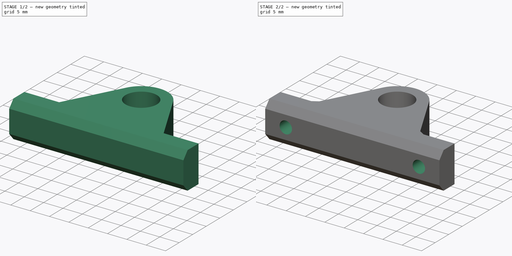
[diagram: build sequence overview — one tinted view per stage of 2, left to right]
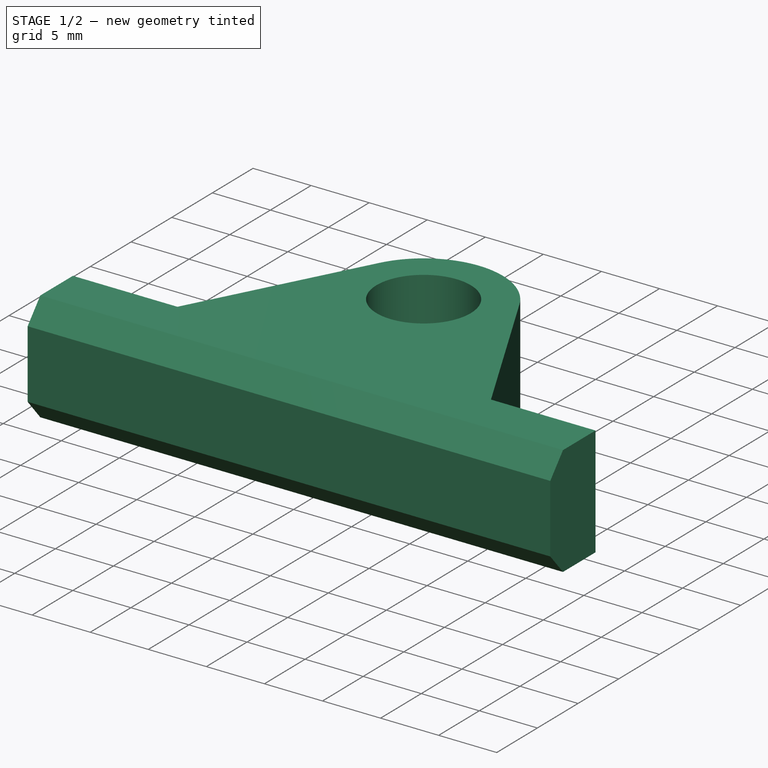
[diagram: stage 1 of 2 — iso view after this stage's code; geometry added in this stage tinted green]
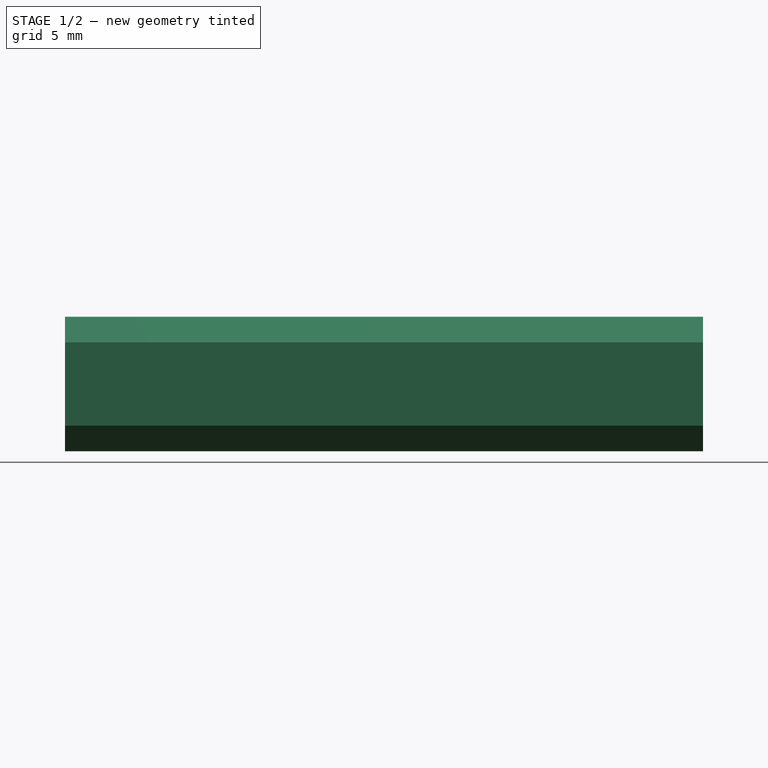
[diagram: stage 1 of 2 — front view after this stage's code; geometry added in this stage tinted green]
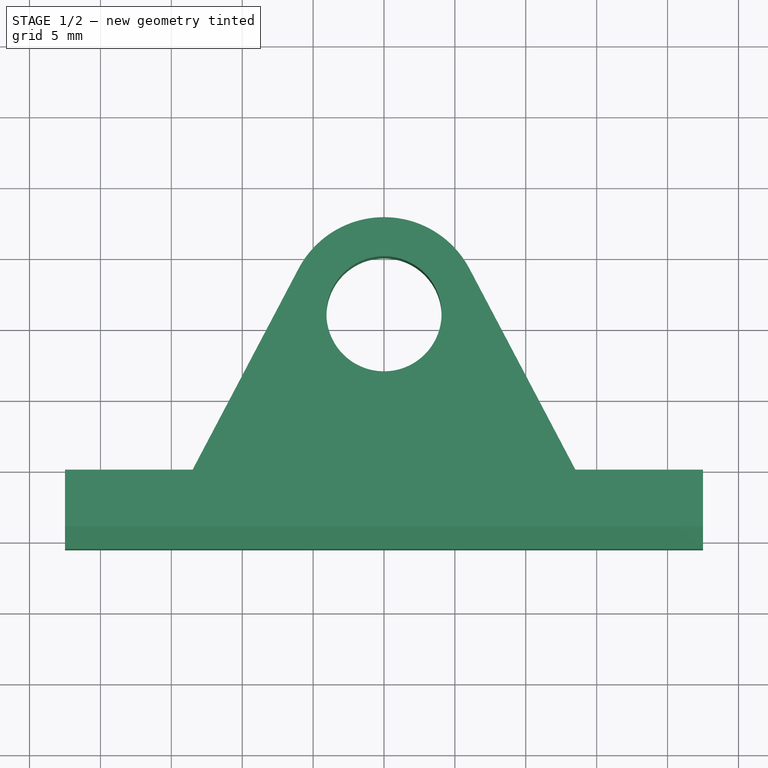
[diagram: stage 1 of 2 — top view after this stage's code; geometry added in this stage tinted green]
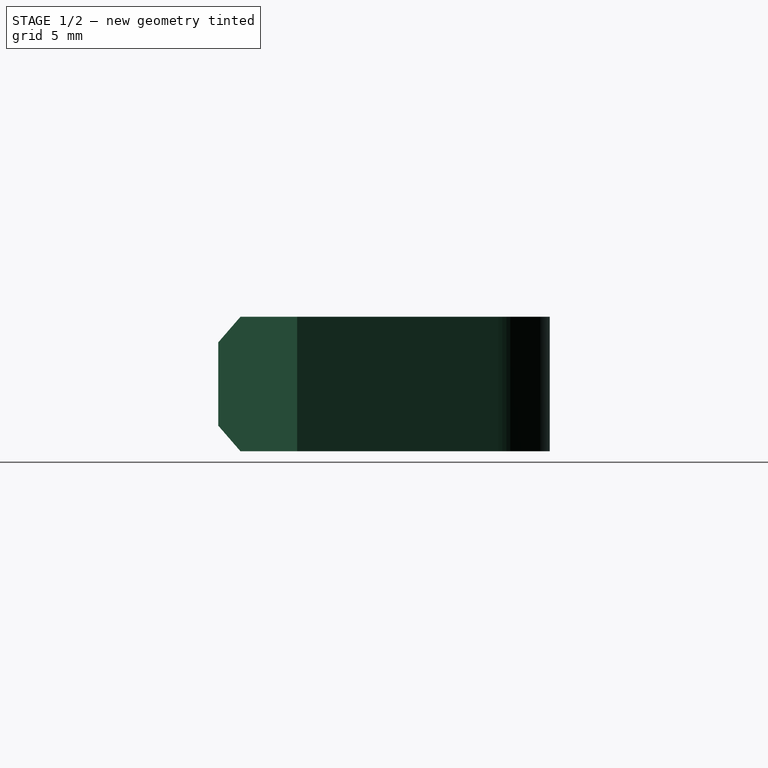
[diagram: stage 1 of 2 — right view after this stage's code; geometry added in this stage tinted green]
FCSTD DOCUMENT  (FreeCAD 0.19R24366 (Git))
Label: v-slot-2020-suporte-fuso-M8
License: All rights reserved
LicenseURL: http://en.wikipedia.org/wiki/All_rights_reserved
objects: Sketcher::SketchObject×3, PartDesign::Pad×2, PartDesign::Pocket×1, PartDesign::Chamfer×1, PartDesign::Body×1
note: 12 computed .brp shape members not serialized (recipe doc carries the construction recipe); baked Part::Feature solids carry a one-line shape summary decoded from their .brp

FEATURE [Sketcher::SketchObject] Sketch
  FullyConstrained = true
  MapMode = 5
  Support = -> [XY_Plane]
  sketch-geometry (10):
    g0: Circle CenterX=0 CenterY=11 CenterZ=0 NormalX=0 NormalY=0 NormalZ=1 AngleXU=0 Radius=4.06
    g1: ArcOfCircle CenterX=0 CenterY=11 CenterZ=0 NormalX=0 NormalY=0 NormalZ=1 AngleXU=0 Radius=6.81385 StartAngle=0.485061 EndAngle=2.65653
    g2: GeomPoint X=-2.52785 Y=14.177 Z=0
    g3: LineSegment StartX=-6.02785 StartY=14.177 StartZ=0 EndX=-13.5 EndY=0 EndZ=0
    g4: LineSegment StartX=6.02785 StartY=14.177 StartZ=0 EndX=13.5 EndY=0 EndZ=0
    g5: LineSegment StartX=-13.5 StartY=0 StartZ=0 EndX=-22.5 EndY=0 EndZ=0
    g6: LineSegment StartX=-22.5 StartY=0 StartZ=0 EndX=-22.5 EndY=-4 EndZ=0
    g7: LineSegment StartX=-22.5 StartY=-4 StartZ=0 EndX=22.5 EndY=-4 EndZ=0
    g8: LineSegment StartX=22.5 StartY=-4 StartZ=0 EndX=22.5 EndY=0 EndZ=0
    g9: LineSegment StartX=22.5 StartY=0 StartZ=0 EndX=13.5 EndY=0 EndZ=0
  constraints (27):
    c: PointOnObject(g0,g-2)
    c: Coincident(g1,g0)
    c: Radius(g0) = 4.06
    c: PointOnObject(g2,g0)
    c: Horizontal(g1,g2)
    c: DistanceX(g1,g2) = 3.5
    c: PointOnObject(g3,g-1)
    c: PointOnObject(g4,g-1)
    c: Equal(g3,g4)
    c: Tangent(g3,g1) = -1.5708
    c: Tangent(g4,g1) = 1.5708
    c: Coincident(g5,g3)
    c: PointOnObject(g5,g-1)
    c: Coincident(g5,g6)
    c: Coincident(g6,g7)
    c: Horizontal(g7)
    c: Coincident(g7,g8)
    c: PointOnObject(g8,g-1)
    c: Vertical(g8)
    c: Coincident(g8,g9)
    c: Coincident(g9,g4)
    c: Equal(g5,g9)
    c: Vertical(g6)
    c: DistanceX(g7,g7) = 45
    c: DistanceX(g5,g3) = 9
    c: DistanceY(g8,g8) = 4
    c: DistanceY(g6,g0) = 15
FEATURE [PartDesign::Pad] Pad
  Direction = (1,1,1)
  Length = 9.48
  Length2 = 100
  Profile = -> Sketch
  Type = 0
FEATURE [Sketcher::SketchObject] Sketch001
  ExternalGeometry = -> [Pad]
  FullyConstrained = true
  MapMode = 5
  Placement = pos=(-22.5,0,0) rot=(0.57735,-0.57735,-0.57735;2.0944rad)
  Support = -> [Pad]
  sketch-geometry (4):
    g0: LineSegment StartX=4 StartY=9.48 StartZ=0 EndX=4 EndY=0 EndZ=0
    g1: LineSegment StartX=4 StartY=0 StartZ=0 EndX=5.56 EndY=1.8 EndZ=0
    g2: LineSegment StartX=5.56 StartY=1.8 StartZ=0 EndX=5.56 EndY=7.68 EndZ=0
    g3: LineSegment StartX=5.56 StartY=7.68 StartZ=0 EndX=4 EndY=9.48 EndZ=0
  constraints (10):
    c: Coincident(g-3,g0)
    c: Coincident(g0,g-3)
    c: Coincident(g0,g1)
    c: Coincident(g1,g2)
    c: Vertical(g2)
    c: Coincident(g2,g3)
    c: Coincident(g3,g0)
    c: Equal(g3,g1)
    c: DistanceX(g0,g1) = 1.56
    c: DistanceY(g2,g2) = 5.88
FEATURE [PartDesign::Pad] Pad001
  BaseFeature = -> Pad
  Direction = (1,1,1)
  Length = 10
  Length2 = 100
  Profile = -> Sketch001
  Reversed = true
  Type = 3
  UpToFace = -> Pad [Face6]
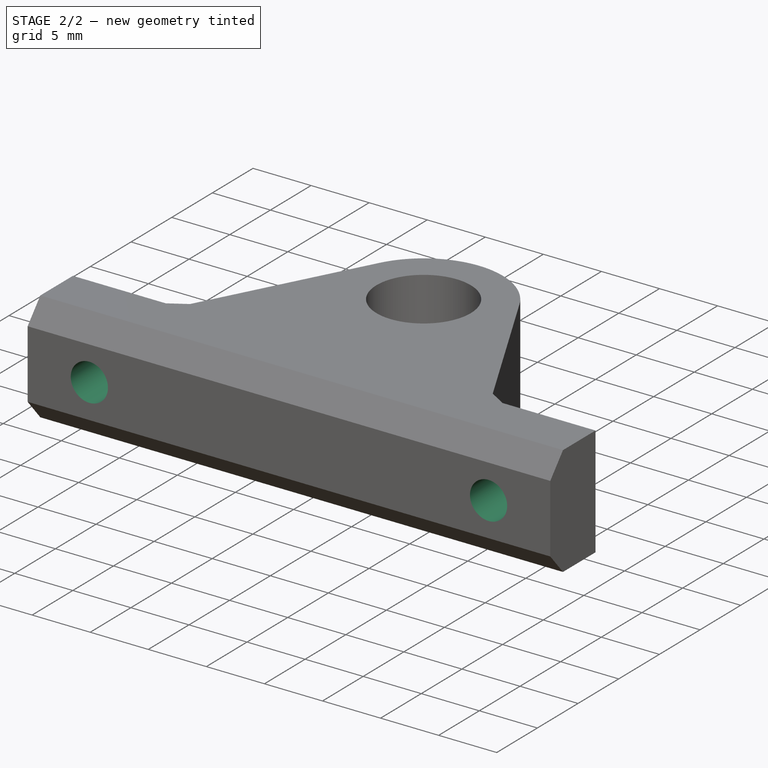
[diagram: stage 2 of 2 — iso view after this stage's code; geometry added in this stage tinted green]
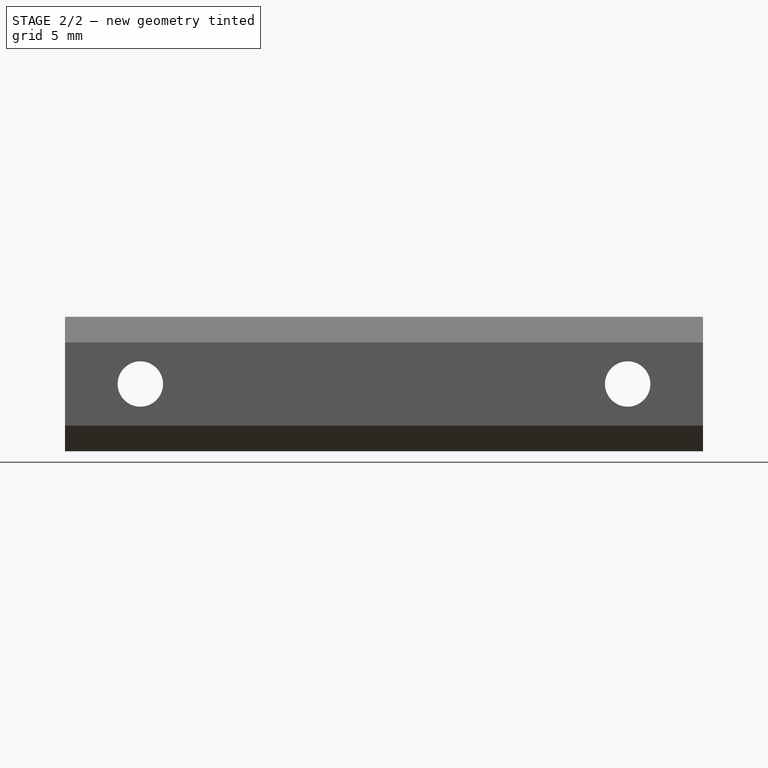
[diagram: stage 2 of 2 — front view after this stage's code; geometry added in this stage tinted green]
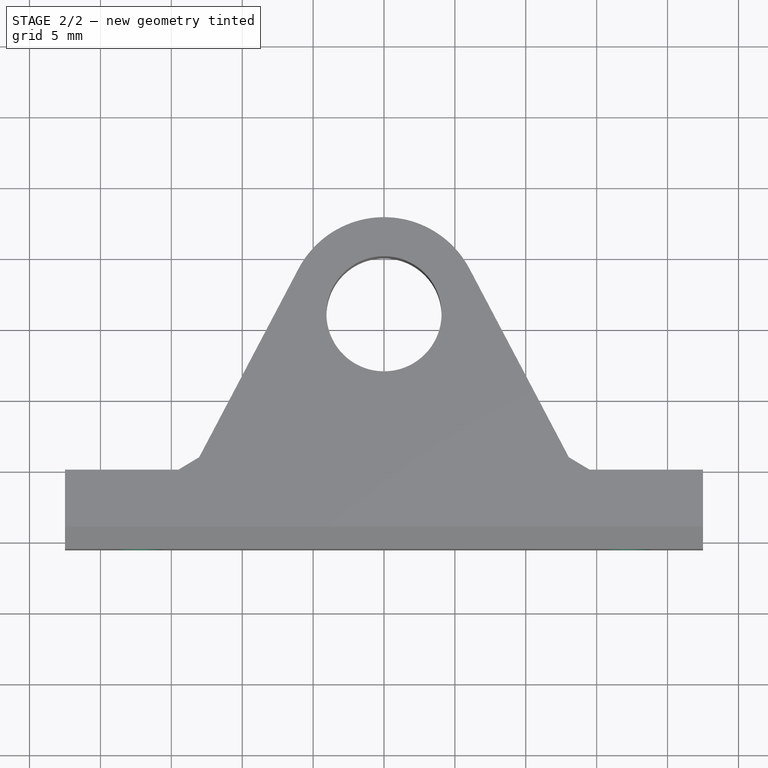
[diagram: stage 2 of 2 — top view after this stage's code; geometry added in this stage tinted green]
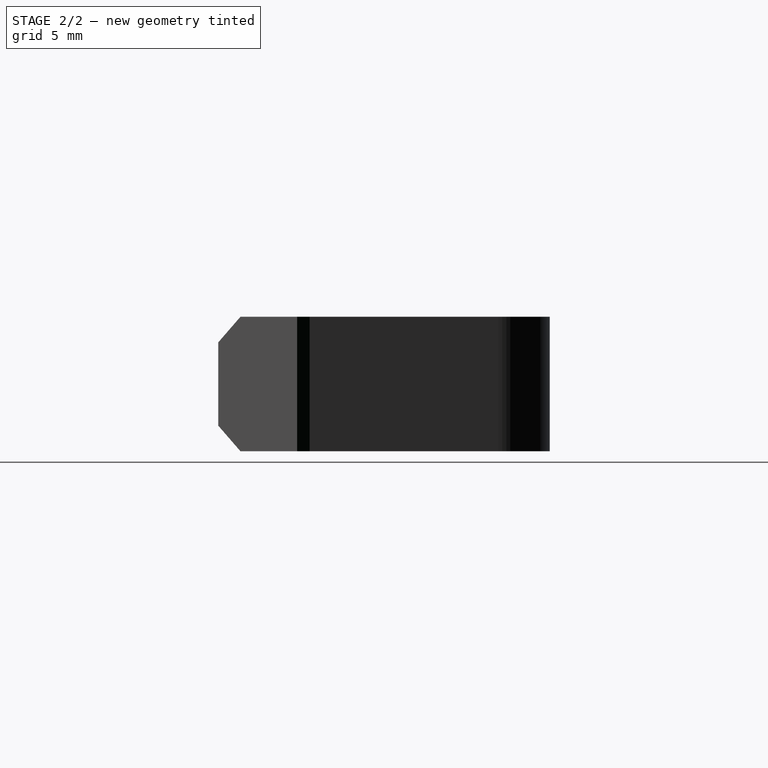
[diagram: stage 2 of 2 — right view after this stage's code; geometry added in this stage tinted green]
FEATURE [Sketcher::SketchObject] Sketch002
  ExternalGeometry = -> [Pad001]
  FullyConstrained = true
  MapMode = 5
  Placement = pos=(0,-5.56,0) rot=(1,0,0;1.5708rad)
  Support = -> [Pad001]
  sketch-geometry (6):
    g0: LineSegment StartX=0 StartY=9.48 StartZ=0 EndX=0 EndY=4.74 EndZ=0
    g1: LineSegment StartX=0 StartY=4.74 StartZ=0 EndX=0 EndY=0 EndZ=0
    g2: LineSegment StartX=0 StartY=4.74 StartZ=0 EndX=17.186 EndY=4.74 EndZ=0
    g3: LineSegment StartX=0 StartY=4.74 StartZ=0 EndX=-17.186 EndY=4.74 EndZ=0
    g4: Circle CenterX=-17.186 CenterY=4.74 CenterZ=0 NormalX=0 NormalY=0 NormalZ=1 AngleXU=0 Radius=1.6
    g5: Circle CenterX=17.186 CenterY=4.74 CenterZ=0 NormalX=0 NormalY=0 NormalZ=1 AngleXU=0 Radius=1.6
  constraints (16):
    c: Coincident(g-1,g1)
    c: PointOnObject(g0,g-3)
    c: PointOnObject(g0,g-2)
    c: Coincident(g1,g0)
    c: PointOnObject(g0,g-2)
    c: Equal(g0,g1)
    c: Coincident(g2,g0)
    c: Horizontal(g2)
    c: Coincident(g3,g0)
    c: Horizontal(g3)
    c: Equal(g3,g2)
    c: Coincident(g5,g2)
    c: Coincident(g3,g4)
    c: Equal(g4,g5)
    c: Radius(g5) = 1.6
    c: DistanceX(g4,g5) = 34.372
FEATURE [PartDesign::Pocket] Pocket
  BaseFeature = -> Pad001
  Length = 5
  Length2 = 100
  Profile = -> Sketch002
  Type = 1
FEATURE [PartDesign::Chamfer] Chamfer
  Angle = 45
  Base = -> Pocket [Edge5,Edge8]
  BaseFeature = -> Pocket
  ChamferType = 0
  FlipDirection = false
  Size = 1
  Size2 = 1
  SupportTransform = false
FEATURE [PartDesign::Body] Body
  Group = -> [Sketch,Pad,Sketch001,Pad001,Sketch002,Pocket,Chamfer]
  Origin = -> Origin
  Tip = -> Chamfer
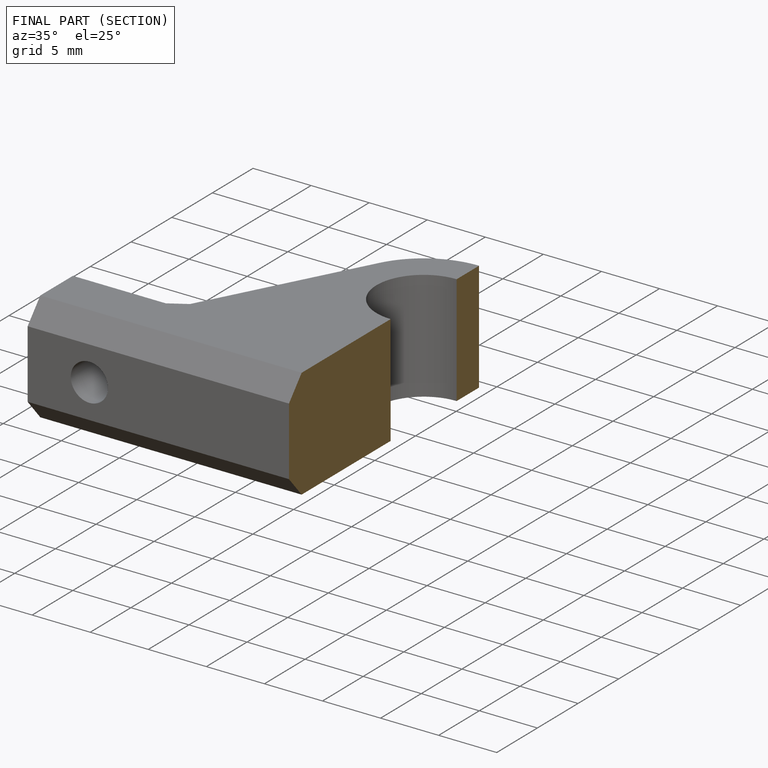
[diagram: finished part — half-section view (interior)]
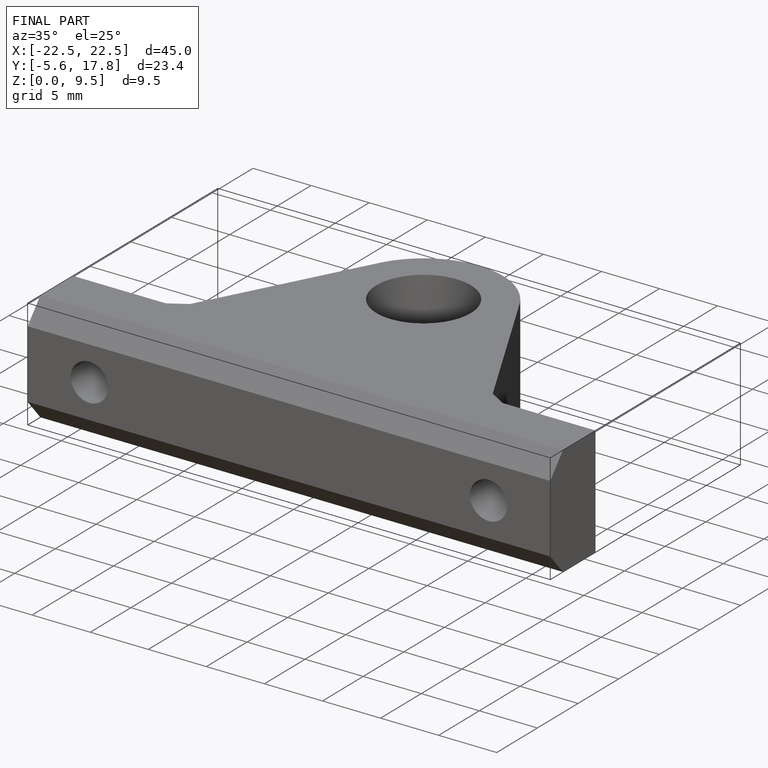
[diagram: finished part — iso view with bounding-box wireframe]
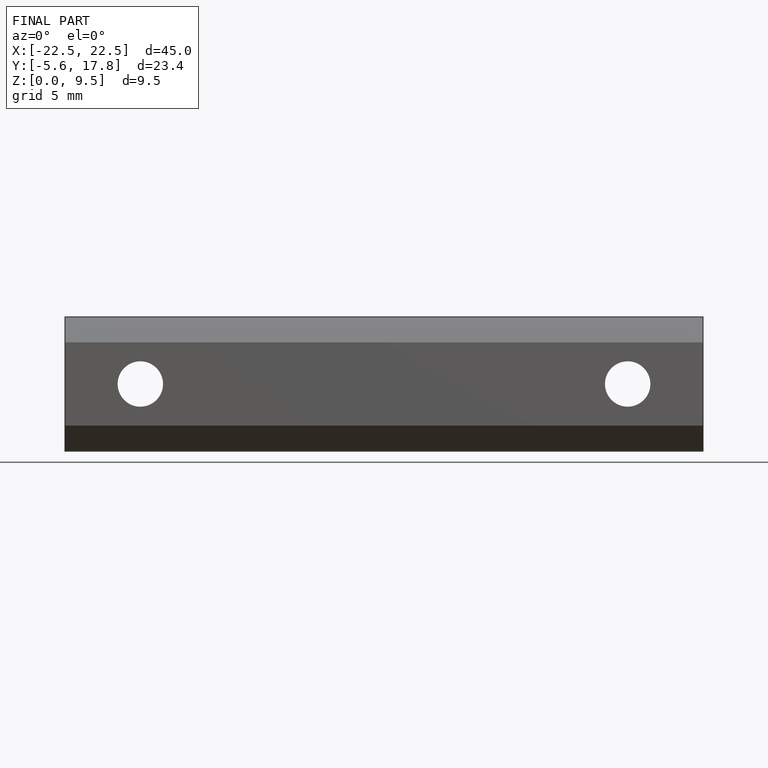
[diagram: finished part — front view with bounding-box wireframe]
